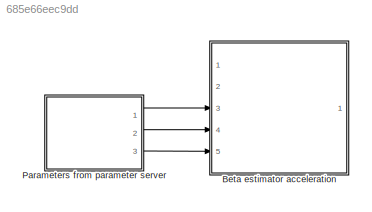
MODEL slx_685e66eec9dd
KIND model
CONFIG AbsTol = auto
CONFIG EnableMultiTasking = off
CONFIG FixedStep = auto
CONFIG MaxStep = auto
CONFIG MinStep = auto
CONFIG RelTol = 1e-3
CONFIG SampleTimeConstraint = Unconstrained
CONFIG Solver = VariableStepAuto
CONFIG SolverName = VariableStepAuto
CONFIG StartTime = 0.0
CONFIG StopTime = 10.0
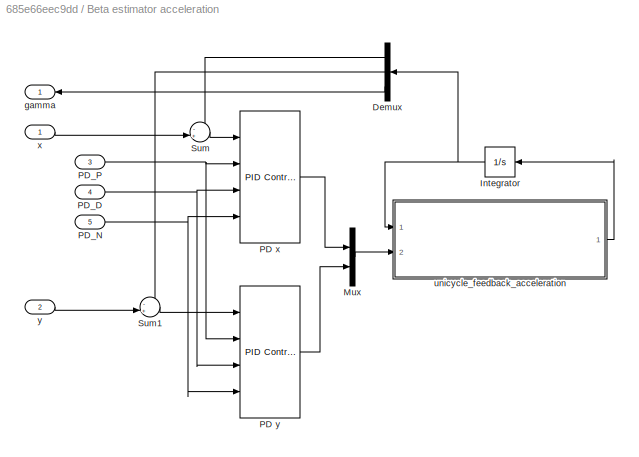
BLOCK [SubSystem] Beta estimator acceleration
  Ports = [5, 1]
  RequestExecContextInheritance = off
  Variant = off
BLOCK [Demux] Beta estimator acceleration/Demux
  DisplayOption = bar
  Outputs = 3
  Ports = [1, 3]
BLOCK [Integrator] Beta estimator acceleration/Integrator
  Ports = [1, 1]
BLOCK [Mux] Beta estimator acceleration/Mux
  DisplayOption = bar
  Inputs = 2
  Ports = [2, 1]
BLOCK [Reference] Beta estimator acceleration/PD x  REF=simulink/Continuous/PID Controller
  Ports = [4, 1]
  SourceBlock = simulink/Continuous/PID Controller
  SourceProductBaseCode = SL
  SourceProductName = Simulink
  SourceType = PID 1dof
BLOCK [Reference] Beta estimator acceleration/PD y  REF=simulink/Continuous/PID Controller
  Ports = [4, 1]
  SourceBlock = simulink/Continuous/PID Controller
  SourceProductBaseCode = SL
  SourceProductName = Simulink
  SourceType = PID 1dof
BLOCK [Inport] Beta estimator acceleration/PD_D
  IconDisplay = Port number
  Port = 4
BLOCK [Inport] Beta estimator acceleration/PD_N
  IconDisplay = Port number
  Port = 5
BLOCK [Inport] Beta estimator acceleration/PD_P
  IconDisplay = Port number
  Port = 3
BLOCK [Sum] Beta estimator acceleration/Sum
  IconShape = round
  InputSameDT = off
  Inputs = -+|
  OutDataTypeStr = Inherit: Inherit via internal rule
  Ports = [2, 1]
  SaturateOnIntegerOverflow = off
BLOCK [Sum] Beta estimator acceleration/Sum1
  IconShape = round
  InputSameDT = off
  Inputs = -+|
  OutDataTypeStr = Inherit: Inherit via internal rule
  Ports = [2, 1]
  SaturateOnIntegerOverflow = off
BLOCK [Outport] Beta estimator acceleration/gamma
  IconDisplay = Port number
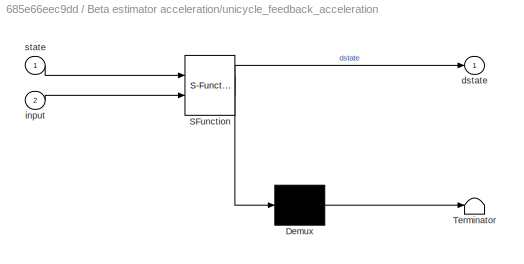
BLOCK [SubSystem] Beta estimator acceleration/unicycle_feedback_acceleration
  ErrorFcn = Stateflow.Translate.translate
  PermitHierarchicalResolution = ExplicitOnly
  Ports = [2, 1]
  RequestExecContextInheritance = off
  SFBlockType = MATLAB Function
  TreatAsAtomicUnit = on
  Variant = off
BLOCK [Demux] Beta estimator acceleration/unicycle_feedback_acceleration/ Demux 
  Outputs = 1
  Ports = [1, 1]
BLOCK [S-Function] Beta estimator acceleration/unicycle_feedback_acceleration/ SFunction 
  EnableBusSupport = off
  FunctionName = sf_sfun
  PortCounts = [2 2]
  Ports = [2, 2]
  SFcnIsStateOwnerBlock = off
  SFunctionDeploymentMode = off
  Tag = Stateflow S-Function beta_estimator_acceleration 2
BLOCK [Terminator] Beta estimator acceleration/unicycle_feedback_acceleration/ Terminator 
BLOCK [Outport] Beta estimator acceleration/unicycle_feedback_acceleration/dstate
  IconDisplay = Port number
BLOCK [Inport] Beta estimator acceleration/unicycle_feedback_acceleration/input
  IconDisplay = Port number
  Port = 2
BLOCK [Inport] Beta estimator acceleration/unicycle_feedback_acceleration/state
  IconDisplay = Port number
BLOCK [Inport] Beta estimator acceleration/x
  IconDisplay = Port number
BLOCK [Inport] Beta estimator acceleration/y
  IconDisplay = Port number
  Port = 2
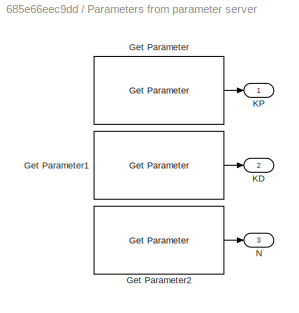
BLOCK [SubSystem] Parameters from parameter server
  Ports = [0, 3]
  RequestExecContextInheritance = off
  Variant = off
BLOCK [Reference] Parameters from parameter server/Get Parameter  REF=robotlib/Get Parameter
  Ports = [0, 1]
  SourceBlock = robotlib/Get Parameter
  SourceLibraryInfo = This block requires Robotics System Toolbox
  SourceProductBaseCode = RO
  SourceProductName = Robotics System Toolbox
  SourceType = ROS Get Parameter
BLOCK [Reference] Parameters from parameter server/Get Parameter1  REF=robotlib/Get Parameter
  Ports = [0, 1]
  SourceBlock = robotlib/Get Parameter
  SourceLibraryInfo = This block requires Robotics System Toolbox
  SourceProductBaseCode = RO
  SourceProductName = Robotics System Toolbox
  SourceType = ROS Get Parameter
BLOCK [Reference] Parameters from parameter server/Get Parameter2  REF=robotlib/Get Parameter
  Ports = [0, 1]
  SourceBlock = robotlib/Get Parameter
  SourceLibraryInfo = This block requires Robotics System Toolbox
  SourceProductBaseCode = RO
  SourceProductName = Robotics System Toolbox
  SourceType = ROS Get Parameter
BLOCK [Outport] Parameters from parameter server/KD
  IconDisplay = Port number
  Port = 2
BLOCK [Outport] Parameters from parameter server/KP
  IconDisplay = Port number
BLOCK [Outport] Parameters from parameter server/N
  IconDisplay = Port number
  Port = 3
LINE Beta estimator acceleration/Demux:1 -> Beta estimator acceleration/Sum:1
LINE Beta estimator acceleration/Demux:2 -> Beta estimator acceleration/Sum1:1
LINE Beta estimator acceleration/Demux:3 -> Beta estimator acceleration/gamma:1
NET Beta estimator acceleration/Integrator:1 -> Beta estimator acceleration/Demux:1, Beta estimator acceleration/unicycle_feedback_acceleration:1
LINE Beta estimator acceleration/Mux:1 -> Beta estimator acceleration/unicycle_feedback_acceleration:2
LINE Beta estimator acceleration/PD x:1 -> Beta estimator acceleration/Mux:1
LINE Beta estimator acceleration/PD y:1 -> Beta estimator acceleration/Mux:2
NET Beta estimator acceleration/PD_D:1 -> Beta estimator acceleration/PD x:3, Beta estimator acceleration/PD y:3
NET Beta estimator acceleration/PD_N:1 -> Beta estimator acceleration/PD x:4, Beta estimator acceleration/PD y:4
NET Beta estimator acceleration/PD_P:1 -> Beta estimator acceleration/PD x:2, Beta estimator acceleration/PD y:2
LINE Beta estimator acceleration/Sum1:1 -> Beta estimator acceleration/PD y:1
LINE Beta estimator acceleration/Sum:1 -> Beta estimator acceleration/PD x:1
LINE Beta estimator acceleration/unicycle_feedback_acceleration:1 -> Beta estimator acceleration/Integrator:1
LINE Beta estimator acceleration/x:1 -> Beta estimator acceleration/Sum:2
LINE Beta estimator acceleration/y:1 -> Beta estimator acceleration/Sum1:2
LINE Parameters from parameter server/Get Parameter1:1 -> Parameters from parameter server/KD:1
LINE Parameters from parameter server/Get Parameter2:1 -> Parameters from parameter server/N:1
LINE Parameters from parameter server/Get Parameter:1 -> Parameters from parameter server/KP:1
LINE Parameters from parameter server:1 -> Beta estimator acceleration:3
LINE Parameters from parameter server:2 -> Beta estimator acceleration:4
LINE Parameters from parameter server:3 -> Beta estimator acceleration:5
note: NET lines group one-source signal fan-out (src -> all destinations, sorted); 1:1 wires keep LINE
CHART Beta estimator acceleration/unicycle_feedback_acceleration states=1 transitions=1
  STATE_LABEL 'eML_blk_kernel()'
  STATE_LABEL 'SCRIPT:\nfunction dstate = unicycle_feedback_acceleration(state,input)\n\n% State and input variables\nx     = state(1);\ny     = state(1);\ngamma = state(3); % theta+beta\nv     = state(4);\nax    = input(1);\nay    = input(2);\n\n% Model equations\ndstate = zeros(4,1);\ndstate(1) = v*cos(gamma);\ndstate(2) = v*sin(gamma);\ndstate(3) = (ay*cos(gamma)-ax*sin(gamma))/v;\ndstate(4) = ax*cos(gamma)+ay*sin(gamma);\n'
